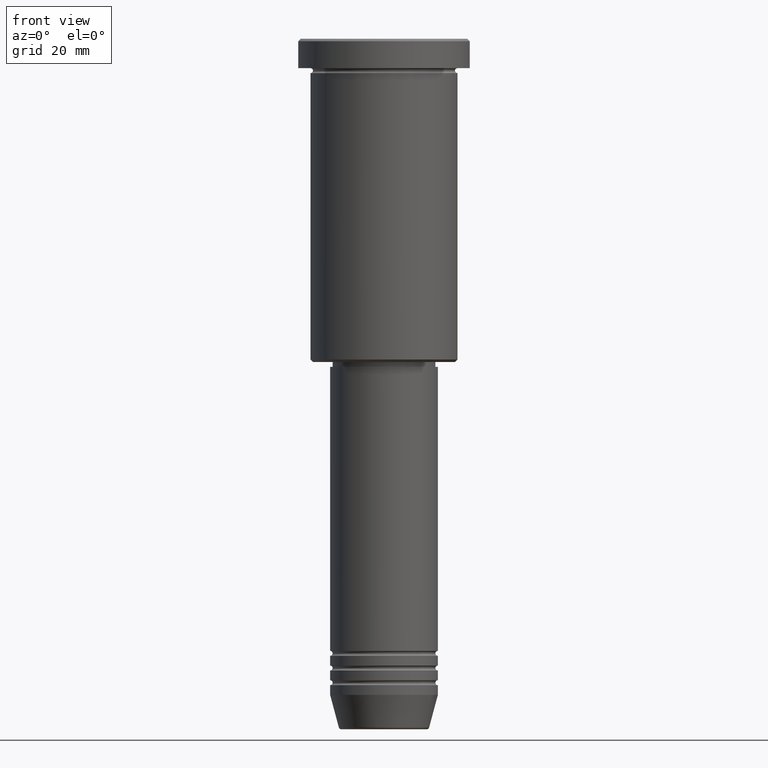
[diagram: clean part render]
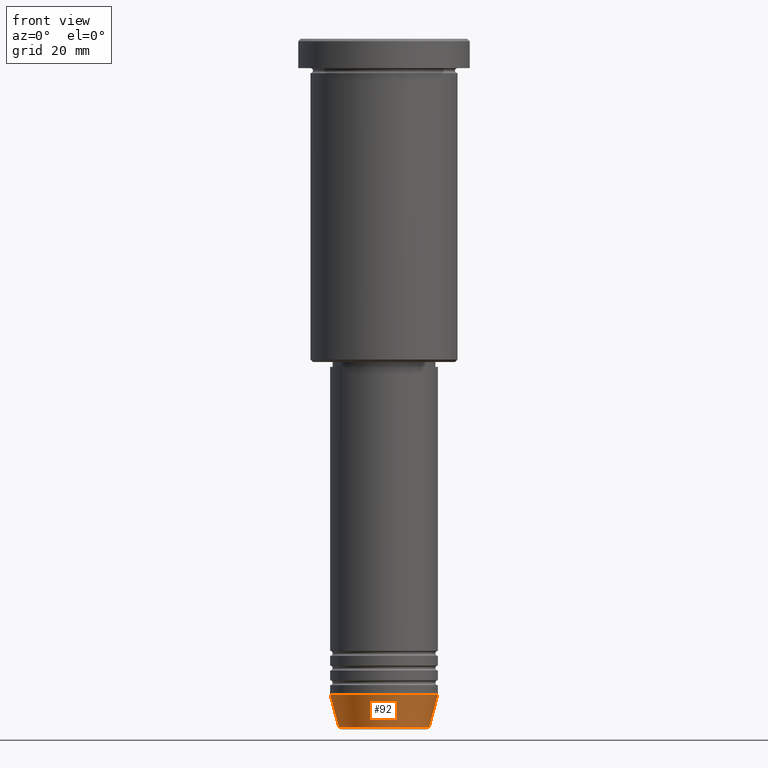
[diagram: same view with one face highlighted and labeled with its STEP entity id]
A machine part, front view. The second image highlights one B-rep face of the part: STEP entity #92.
In plain terms, the highlighted conical surface has half-angle 15 deg.
Its self-contained STEP definition (entity closure, byte-faithful):
#45 = DIRECTION ( 'NONE',  ( 1.000000000000000000, 0.000000000000000000, 0.000000000000000000 ) ) ;
#47 = DIRECTION ( 'NONE',  ( 0.2588190451025213501, 0.000000000000000000, 0.9659258262890680902 ) ) ;
#85 = AXIS2_PLACEMENT_3D ( 'NONE', #1029, #669, #945 ) ;
#92 = ADVANCED_FACE ( 'NONE', ( #774 ), #598, .T. ) ;
#151 = EDGE_CURVE ( 'NONE', #213, #849, #433, .T. ) ;
#213 = VERTEX_POINT ( 'NONE', #869 ) ;
#337 = AXIS2_PLACEMENT_3D ( 'NONE', #423, #763, #670 ) ;
#423 = CARTESIAN_POINT ( 'NONE',  ( 0.000000000000000000, 0.000000000000000000, -140.6294095225512706 ) ) ;
#433 = CIRCLE ( 'NONE', #337, 9.223655072137189492 ) ;
#456 = ORIENTED_EDGE ( 'NONE', *, *, #1008, .F. ) ;
#479 = ORIENTED_EDGE ( 'NONE', *, *, #1004, .T. ) ;
#495 = DIRECTION ( 'NONE',  ( -0.000000000000000000, -0.000000000000000000, 1.000000000000000000 ) ) ;
#497 = LINE ( 'NONE', #596, #1070 ) ;
#596 = CARTESIAN_POINT ( 'NONE',  ( 11.00000000000000000, 0.000000000000000000, -134.0000000000000000 ) ) ;
#598 = CONICAL_SURFACE ( 'NONE', #867, 11.00000000000000000, 0.2617993877991500740 ) ;
#669 = DIRECTION ( 'NONE',  ( -0.000000000000000000, -0.000000000000000000, 1.000000000000000000 ) ) ;
#670 = DIRECTION ( 'NONE',  ( 1.000000000000000000, 0.000000000000000000, 0.000000000000000000 ) ) ;
#679 = ORIENTED_EDGE ( 'NONE', *, *, #738, .F. ) ;
#693 = VECTOR ( 'NONE', #908, 1000.000000000000000 ) ;
#707 = ORIENTED_EDGE ( 'NONE', *, *, #151, .T. ) ;
#738 = EDGE_CURVE ( 'NONE', #213, #1023, #1079, .T. ) ;
#763 = DIRECTION ( 'NONE',  ( -0.000000000000000000, -0.000000000000000000, 1.000000000000000000 ) ) ;
#774 = FACE_OUTER_BOUND ( 'NONE', #1139, .T. ) ;
#782 = VERTEX_POINT ( 'NONE', #980 ) ;
#832 = CARTESIAN_POINT ( 'NONE',  ( 9.223655072137189492, 0.000000000000000000, -140.6294095225512706 ) ) ;
#849 = VERTEX_POINT ( 'NONE', #832 ) ;
#867 = AXIS2_PLACEMENT_3D ( 'NONE', #935, #495, #45 ) ;
#869 = CARTESIAN_POINT ( 'NONE',  ( -9.223655072137189492, 1.238341722557647202E-15, -140.6294095225512706 ) ) ;
#871 = CARTESIAN_POINT ( 'NONE',  ( -11.00000000000000000, 1.347111479062088405E-15, -134.0000000000000000 ) ) ;
#908 = DIRECTION ( 'NONE',  ( -0.2588190451025213501, 3.169619151431772337E-17, 0.9659258262890680902 ) ) ;
#935 = CARTESIAN_POINT ( 'NONE',  ( 0.000000000000000000, 0.000000000000000000, -134.0000000000000000 ) ) ;
#945 = DIRECTION ( 'NONE',  ( 1.000000000000000000, 0.000000000000000000, 0.000000000000000000 ) ) ;
#972 = CARTESIAN_POINT ( 'NONE',  ( -11.00000000000000000, 1.347111479062088405E-15, -134.0000000000000000 ) ) ;
#980 = CARTESIAN_POINT ( 'NONE',  ( 11.00000000000000000, 0.000000000000000000, -134.0000000000000000 ) ) ;
#1004 = EDGE_CURVE ( 'NONE', #849, #782, #497, .T. ) ;
#1008 = EDGE_CURVE ( 'NONE', #1023, #782, #1091, .T. ) ;
#1023 = VERTEX_POINT ( 'NONE', #871 ) ;
#1029 = CARTESIAN_POINT ( 'NONE',  ( 0.000000000000000000, 0.000000000000000000, -134.0000000000000000 ) ) ;
#1070 = VECTOR ( 'NONE', #47, 1000.000000000000000 ) ;
#1079 = LINE ( 'NONE', #972, #693 ) ;
#1091 = CIRCLE ( 'NONE', #85, 11.00000000000000000 ) ;
#1139 = EDGE_LOOP ( 'NONE', ( #679, #707, #479, #456 ) ) ;